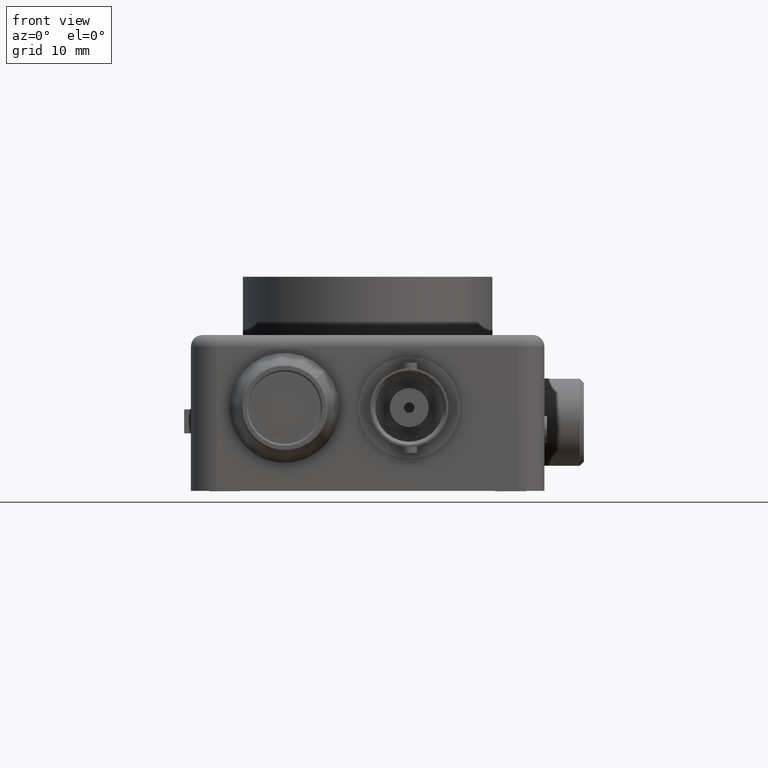
[diagram: clean part render]
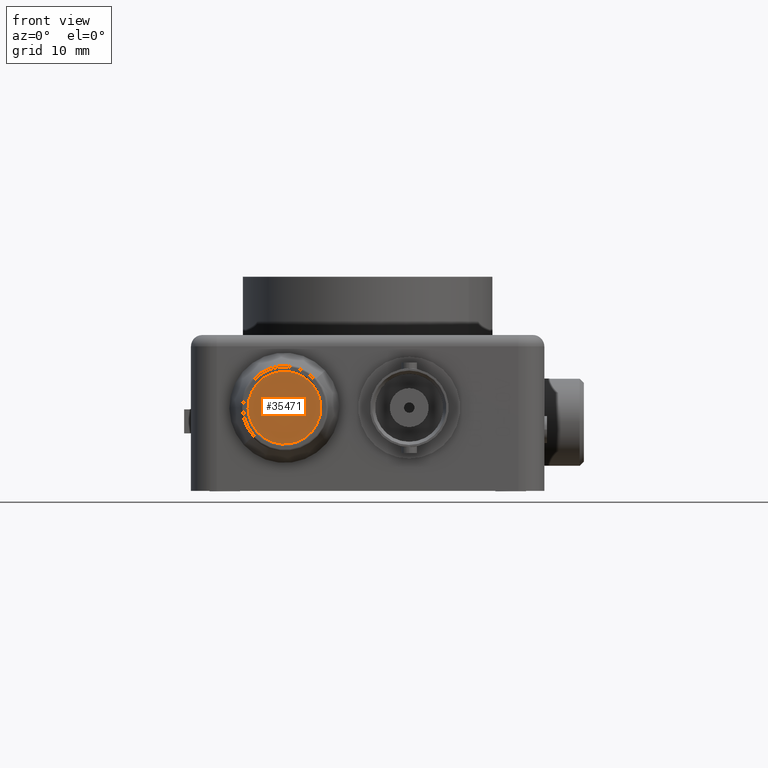
[diagram: same view with one face highlighted and labeled with its STEP entity id]
A machine part, front view. The second image highlights one B-rep face of the part: STEP entity #35471.
In plain terms, the highlighted planar face has unit normal (-0, -1, 0).
Its self-contained STEP definition (entity closure, byte-faithful):
#35291 = EDGE_CURVE ( 'NONE', #35293, #35296, #78814, .T. ) ;
#35293 = VERTEX_POINT ( 'NONE', #78809 ) ;
#35296 = VERTEX_POINT ( 'NONE', #78806 ) ;
#35339 = EDGE_LOOP ( 'NONE', ( #35340, #35343 ) ) ;
#35340 = ORIENTED_EDGE ( 'NONE', *, *, #35467, .T. ) ;
#35343 = ORIENTED_EDGE ( 'NONE', *, *, #35291, .T. ) ;
#35467 = EDGE_CURVE ( 'NONE', #35296, #35293, #79319, .T. ) ;
#35471 = ADVANCED_FACE ( 'NONE', ( #79402 ), #79370, .T. ) ;
#78700 = CARTESIAN_POINT ( 'NONE',  ( 0.4499999999999988500, -0.2999999999999999300, 0.3999999999999990200 ) ) ;
#78806 = CARTESIAN_POINT ( 'NONE',  ( 0.3208445192139631800, -0.2999999999999999300, 0.2819158698938413200 ) ) ;
#78809 = CARTESIAN_POINT ( 'NONE',  ( 0.5791554807860345200, -0.2999999999999999300, 0.5180841301061567300 ) ) ;
#78811 = DIRECTION ( 'NONE',  ( -0.7380313187773466200, 0.0000000000000000000, -0.6747664577494724100 ) ) ;
#78812 = DIRECTION ( 'NONE',  ( -2.027184870627574200E-031, -1.000000000000000000, 1.224606353822364700E-016 ) ) ;
#78813 = AXIS2_PLACEMENT_3D ( 'NONE', #78700, #78812, #78811 ) ;
#78814 = CIRCLE ( 'NONE', #78813, 0.1749999999999999900 ) ;
#79316 = DIRECTION ( 'NONE',  ( -0.7380313187773466200, 0.0000000000000000000, -0.6747664577494724100 ) ) ;
#79317 = DIRECTION ( 'NONE',  ( -2.027184870627574200E-031, -1.000000000000000000, 1.224606353822364700E-016 ) ) ;
#79318 = AXIS2_PLACEMENT_3D ( 'NONE', #79325, #79317, #79316 ) ;
#79319 = CIRCLE ( 'NONE', #79318, 0.1749999999999999900 ) ;
#79325 = CARTESIAN_POINT ( 'NONE',  ( 0.4499999999999988500, -0.2999999999999999300, 0.3999999999999990200 ) ) ;
#79361 = DIRECTION ( 'NONE',  ( -0.7380313187773465100, -8.263232915062125900E-017, -0.6747664577494725300 ) ) ;
#79362 = DIRECTION ( 'NONE',  ( -2.101249754637236400E-031, -1.000000000000000000, 1.224606353822364400E-016 ) ) ;
#79364 = CARTESIAN_POINT ( 'NONE',  ( 0.4499999999999988500, -0.2999999999999999300, 0.3999999999999990200 ) ) ;
#79365 = AXIS2_PLACEMENT_3D ( 'NONE', #79364, #79362, #79361 ) ;
#79370 = PLANE ( 'NONE',  #79365 ) ;
#79402 = FACE_OUTER_BOUND ( 'NONE', #35339, .T. ) ;